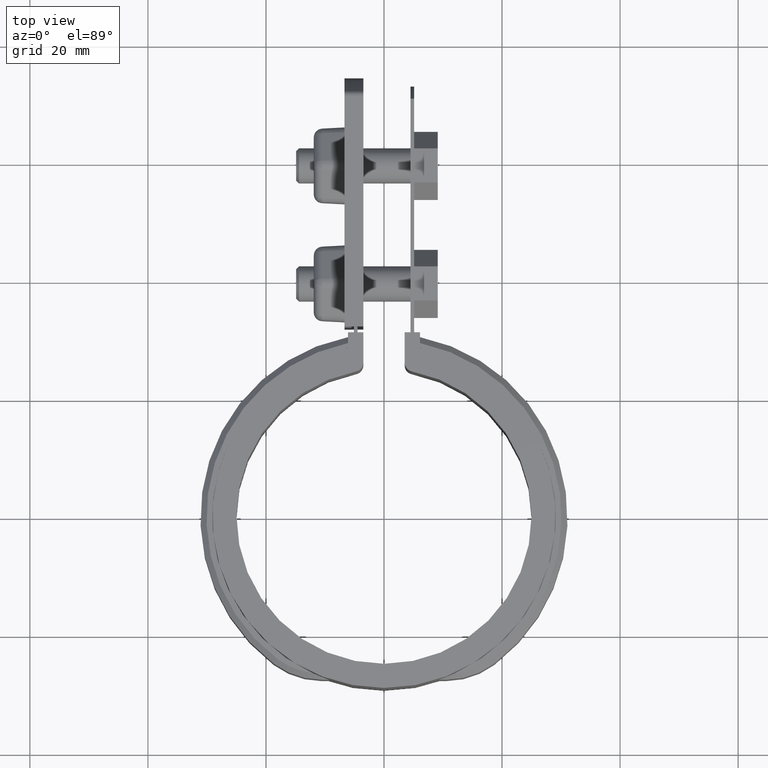
[diagram: clean part render]
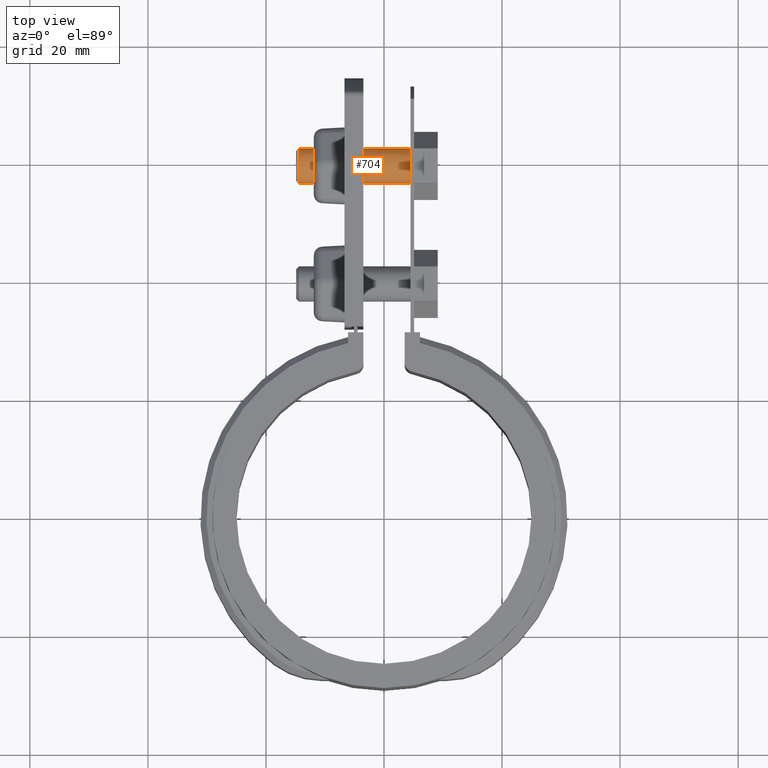
[diagram: same view with one face highlighted and labeled with its STEP entity id]
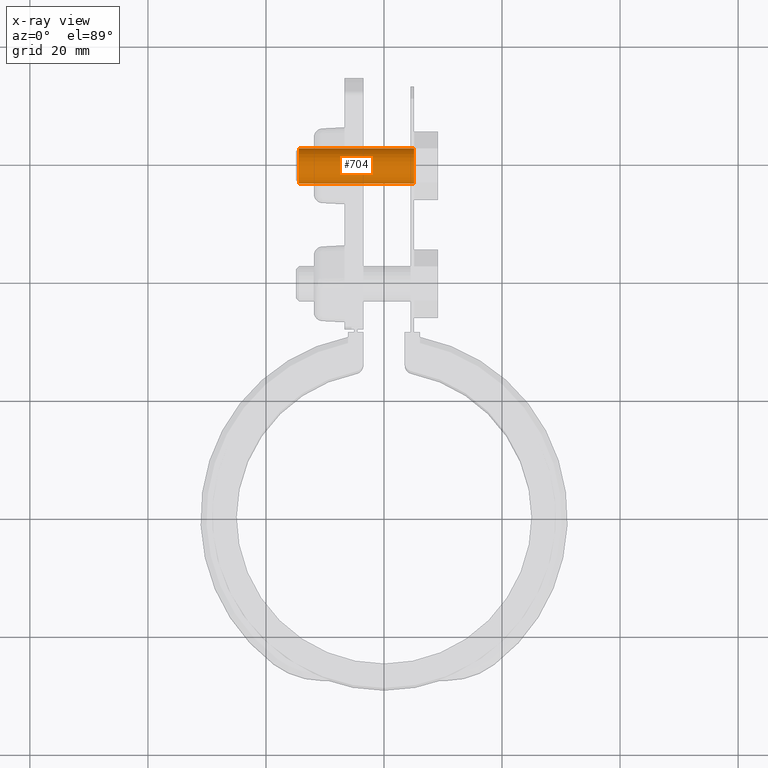
[diagram: x-ray of the same camera — body ghosted, the highlighted face saturated]
A machine part, top view. The second image highlights one B-rep face of the part: STEP entity #704.
The next image is the same camera in x-ray: the body ghosted, the highlighted face saturated — about 0% of this face is hidden behind the body in this view.
In plain terms, the highlighted cylindrical surface (bore or boss wall) has radius 3 mm, axis along (1, 0, 0).
Its self-contained STEP definition (entity closure, byte-faithful):
#704 = ADVANCED_FACE( '', ( #1453, #1454 ), #1455, .T. );
#1453 = FACE_OUTER_BOUND( '', #3117, .T. );
#1454 = FACE_OUTER_BOUND( '', #3118, .T. );
#1455 = CYLINDRICAL_SURFACE( '', #3119, 3.00000000000000 );
#3117 = EDGE_LOOP( '', ( #7062 ) );
#3118 = EDGE_LOOP( '', ( #7063 ) );
#3119 = AXIS2_PLACEMENT_3D( '', #7064, #7065, #7066 );
#7062 = ORIENTED_EDGE( '', *, *, #8130, .T. );
#7063 = ORIENTED_EDGE( '', *, *, #8124, .F. );
#7064 = CARTESIAN_POINT( '', ( 13.5487843911358, 59.6151297144012, -12.5000000000000 ) );
#7065 = DIRECTION( '', ( 1.00000000000000, 3.60261663906837E-210, 1.08245271410516E-225 ) );
#7066 = DIRECTION( '', ( 0.000000000000000, 3.00462919747432E-016, -1.00000000000000 ) );
#8124 = EDGE_CURVE( '', #9714, #9714, #9715, .F. );
#8130 = EDGE_CURVE( '', #9724, #9724, #9725, .T. );
#9714 = VERTEX_POINT( '', #13802 );
#9715 = CIRCLE( '', #13803, 3.00000000000000 );
#9724 = VERTEX_POINT( '', #13817 );
#9725 = CIRCLE( '', #13818, 3.00000000000000 );
#13802 = CARTESIAN_POINT( '', ( 5.10000000000001, 59.6151297144012, -15.5000000000000 ) );
#13803 = AXIS2_PLACEMENT_3D( '', #15096, #15097, #15098 );
#13817 = CARTESIAN_POINT( '', ( -14.4000000000000, 59.6151297144012, -9.50000000000000 ) );
#13818 = AXIS2_PLACEMENT_3D( '', #15104, #15105, #15106 );
#15096 = CARTESIAN_POINT( '', ( 5.10000000000001, 59.6151297144012, -12.5000000000000 ) );
#15097 = DIRECTION( '', ( -1.00000000000000, -3.60261663906837E-210, -1.08245271410516E-225 ) );
#15098 = DIRECTION( '', ( 0.000000000000000, 3.00462919747432E-016, -1.00000000000000 ) );
#15104 = CARTESIAN_POINT( '', ( -14.4000000000000, 59.6151297144012, -12.5000000000000 ) );
#15105 = DIRECTION( '', ( 1.00000000000000, 3.60261663906837E-210, 1.08245271410516E-225 ) );
#15106 = DIRECTION( '', ( 0.000000000000000, -3.00462919747432E-016, 1.00000000000000 ) );